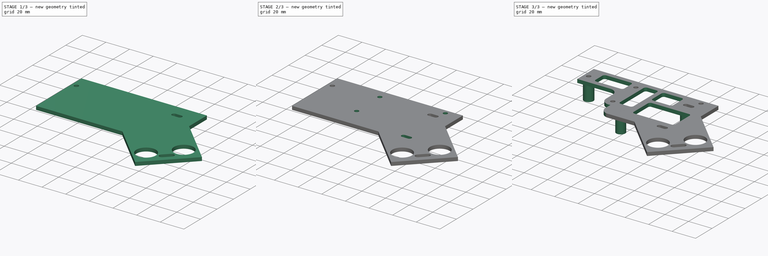
[diagram: build sequence overview — one tinted view per stage of 3, left to right]
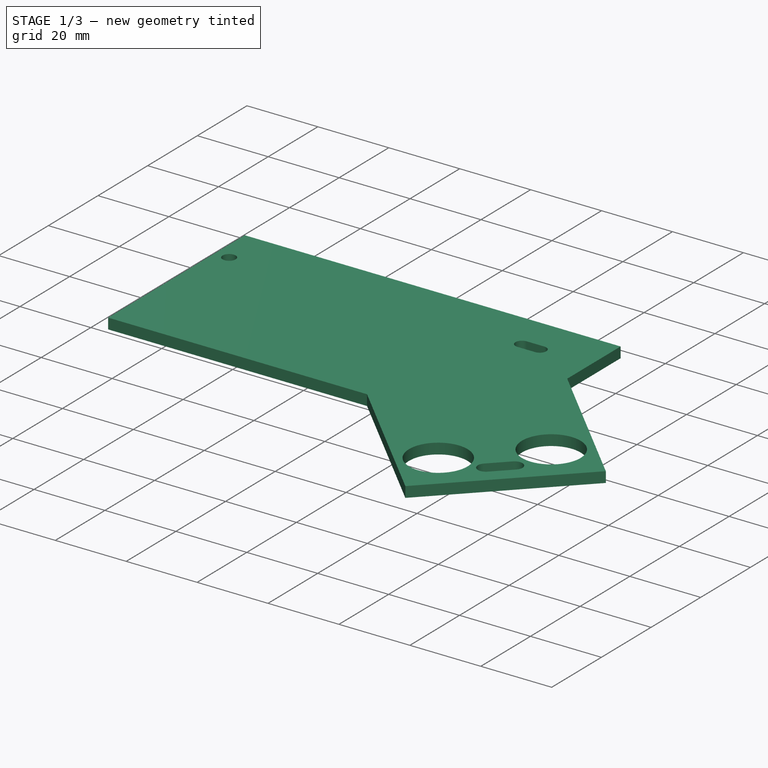
[diagram: stage 1 of 3 — iso view after this stage's code; geometry added in this stage tinted green]
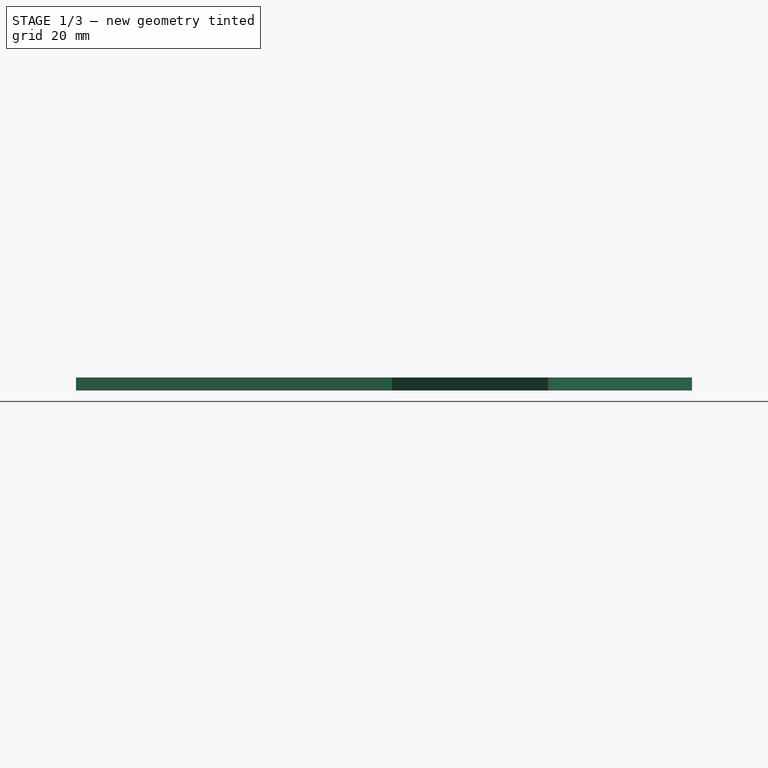
[diagram: stage 1 of 3 — front view after this stage's code; geometry added in this stage tinted green]
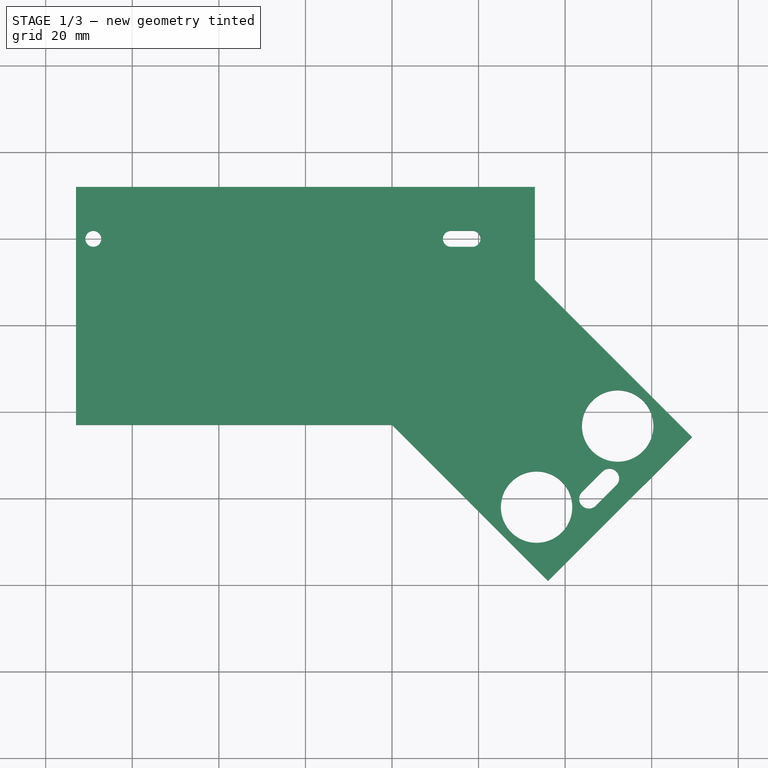
[diagram: stage 1 of 3 — top view after this stage's code; geometry added in this stage tinted green]
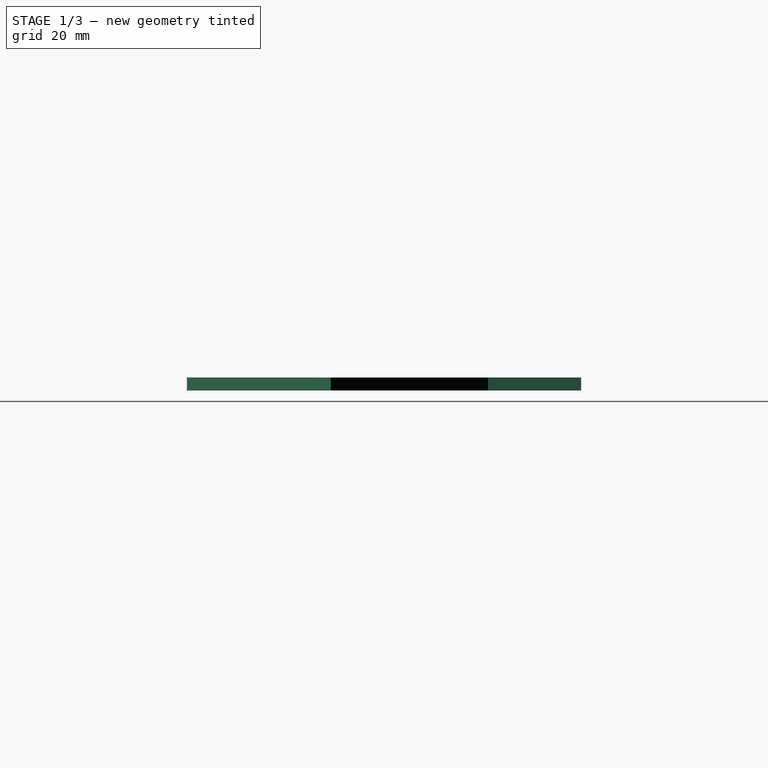
[diagram: stage 1 of 3 — right view after this stage's code; geometry added in this stage tinted green]
FCSTD DOCUMENT  (FreeCAD 0.14R3700 (Git))
Label: arduino platformv7
License: CC-BY 3.0
LicenseURL: http://creativecommons.org/licenses/by/3.0/
objects: Sketcher::SketchObject×5, PartDesign::Pocket×3, Drawing::FeatureViewPart×3, PartDesign::Pad×2, Drawing::FeaturePage×1
note: 15 computed .brp shape members not serialized (recipe doc carries the construction recipe); baked Part::Feature solids carry a one-line shape summary decoded from their .brp

FEATURE [Sketcher::SketchObject] Sketch
  sketch-geometry (13):
    g0: LineSegment StartX=-53 StartY=12 StartZ=0 EndX=53 EndY=12 EndZ=0
    g1: LineSegment StartX=-53 StartY=-43 StartZ=0 EndX=-53 EndY=12 EndZ=0
    g2: Circle CenterX=-49 CenterY=0 CenterZ=0 NormalX=0 NormalY=0 NormalZ=1 Radius=1.85
    g3: LineSegment StartX=53 StartY=-9.5 StartZ=0 EndX=89.3075 EndY=-45.8075 EndZ=0
    g4: LineSegment StartX=89.3075 StartY=-45.8075 StartZ=0 EndX=56.0575 EndY=-79.0575 EndZ=0
    g5: LineSegment StartX=56.0575 StartY=-79.0575 StartZ=0 EndX=20 EndY=-43 EndZ=0
    g6: LineSegment StartX=-53 StartY=-43 StartZ=0 EndX=20 EndY=-43 EndZ=0
    g7: LineSegment StartX=53 StartY=12 StartZ=0 EndX=53 EndY=-9.5 EndZ=0
    g8: GeomPoint [constr] X=21.1337 Y=29.9692 Z=0
    g9: ArcOfCircle CenterX=33.6 CenterY=0 CenterZ=0 NormalX=0 NormalY=0 NormalZ=1 Radius=1.85 StartAngle=1.5708 EndAngle=4.71239
    g10: ArcOfCircle CenterX=38.6 CenterY=0 CenterZ=0 NormalX=0 NormalY=0 NormalZ=1 Radius=1.85 StartAngle=4.71239 EndAngle=7.85398
    g11: LineSegment StartX=33.6 StartY=-1.85 StartZ=0 EndX=38.6 EndY=-1.85 EndZ=0
    g12: LineSegment StartX=33.6 StartY=1.85 StartZ=0 EndX=38.6 EndY=1.85 EndZ=0
  constraints (36):
    c: Coincident(g1,g0)
    c: Horizontal(g0)
    c: Vertical(g1)
    c: DistanceX(g0,g0) = 106
    c: DistanceX(g-1,g1) = -53
    c: DistanceY(g-1,g0) = 12
    c: Radius(g2) = 1.85
    c: DistanceY(g-1,g2) = 0
    c: Coincident(g3,g4)
    c: Coincident(g4,g5)
    c: Angle(g4,g5) = 1.5708
    c: DistanceY(g0,g1) = -55
    c: Coincident(g5,g6)
    c: Coincident(g1,g6)
    c: Coincident(g3,g7)
    c: Coincident(g0,g7)
    c: Angle(g3,g7) = 2.35619
    c: Vertical(g7)
    c: Horizontal(g6)
    c: DistanceY(g3,g0) = 21.5
    c: DistanceX(g1,g5) = 73
    c: Angle(g6,g5) = 2.35619
    c: Tangent(g9,g11)
    c: Tangent(g9,g12)
    c: Tangent(g10,g11)
    c: Tangent(g10,g12)
    c: Coincident(g9,g12)
    c: Coincident(g9,g11)
    c: Coincident(g11,g10)
    c: Coincident(g12,g10)
    c: Horizontal(g11)
    c: Equal(g9,g10)
    c: Radius(g10) = 1.85
    c: DistanceX(g9,g10) = 5
    c: DistanceX(g10,g2) = -87.6
    c: DistanceY(g9,g2) = 0
FEATURE [PartDesign::Pad] Pad
  Length = 3
  Length2 = 20
  Sketch = -> Sketch
  Type = 0
FEATURE [Sketcher::SketchObject] Sketch002
  Placement = pos=(0,0,3) rot=(0,0,1;0rad)
  Support = -> Pad [Face14]
  sketch-geometry (15):
    g0: Circle CenterX=53.4 CenterY=-62 CenterZ=0 NormalX=0 NormalY=0 NormalZ=1 Radius=8.25
    g1: Circle CenterX=72.1383 CenterY=-43.2617 CenterZ=0 NormalX=0 NormalY=0 NormalZ=1 Radius=8.25
    g2: ArcOfCircle CenterX=65.4915 CenterY=-60.0908 CenterZ=0 NormalX=0 NormalY=0 NormalZ=1 Radius=2.25 StartAngle=2.35619 EndAngle=5.49778
    g3: ArcOfCircle CenterX=70.2291 CenterY=-55.3532 CenterZ=0 NormalX=0 NormalY=0 NormalZ=1 Radius=2.25 StartAngle=5.49778 EndAngle=8.63937
    g4: LineSegment StartX=67.0825 StartY=-61.6818 StartZ=0 EndX=71.8201 EndY=-56.9442 EndZ=0
    g5: LineSegment StartX=63.9005 StartY=-58.4998 StartZ=0 EndX=68.6382 EndY=-53.7622 EndZ=0
    g6: LineSegment [constr] StartX=65.4915 StartY=-60.0908 StartZ=0 EndX=70.2291 EndY=-55.3532 EndZ=0
    g7: LineSegment [constr] StartX=65.4915 StartY=-60.0908 StartZ=0 EndX=90.4603 EndY=-60.0908 EndZ=0
    g8: LineSegment [constr] StartX=53.4 StartY=-62 StartZ=0 EndX=83.4 EndY=-62 EndZ=0
    g9: LineSegment [constr] StartX=83.4 StartY=-32 StartZ=0 EndX=53.4 EndY=-62 EndZ=0
    g10: Circle [constr] CenterX=72.1383 CenterY=-43.2617 CenterZ=0 NormalX=0 NormalY=0 NormalZ=1 Radius=7.2
    g11: LineSegment [constr] StartX=91.3469 StartY=-62.4703 StartZ=0 EndX=72.1383 EndY=-43.2617 EndZ=0
    g12: LineSegment [constr] StartX=72.1383 StartY=-43.2617 StartZ=0 EndX=105.378 EndY=-43.2617 EndZ=0
    g13: LineSegment [constr] StartX=53.4 StartY=-62 StartZ=0 EndX=75.1163 EndY=-83.7163 EndZ=0
    g14: Circle [constr] CenterX=53.4 CenterY=-62 CenterZ=0 NormalX=0 NormalY=0 NormalZ=1 Radius=9.65
  constraints (44):
    c: DistanceX(g0) = 53.4
    c: DistanceY(g0) = -62
    c: Radius(g0) = 8.25
    c: Radius(g1) = 8.25
    c: Tangent(g2,g4)
    c: Tangent(g2,g5)
    c: Tangent(g3,g4)
    c: Tangent(g3,g5)
    c: Coincident(g2,g5)
    c: Coincident(g2,g4)
    c: Coincident(g4,g3)
    c: Coincident(g5,g3)
    c: Equal(g2,g3)
    c: Distance(g2,g3) = 6.7
    c: Radius(g2) = 2.25
    c: Angle(g7,g6) = 0.785398
    c: Horizontal(g7)
    c: Coincident(g6,g7)
    c: Coincident(g2,g6)
    c: Coincident(g3,g6)
    c: Coincident(g8,g9)
    c: Horizontal(g8)
    c: Angle(g8,g9) = 0.785398
    c: DistanceY(g8,g9) = 30
    c: DistanceX(g8,g9) = 0
    c: Coincident(g0,g8)
    c: PointOnObject(g1,g9)
    c: Distance(g0,g1) = 26.5
    c: Radius(g10) = 7.2
    c: Coincident(g10,g1)
    c: Tangent(g6,g10)
    c: Coincident(g11,g12)
    c: Horizontal(g12)
    c: Angle(g11,g12) = 0.785398
    c: Coincident(g1,g11)
    c: Coincident(g0,g8)
    c: Coincident(g0,g9)
    c: Coincident(g0,g13)
    c: Angle(g13,g8) = 0.785398
    c: Radius(g14) = 9.65
    c: Coincident(g14,g0)
    c: Coincident(g14,g8)
    c: Coincident(g14,g9)
    c: Distance(g3,g11) = 9.9
FEATURE [PartDesign::Pocket] Pocket
  Length = 5
  Sketch = -> Sketch002
  Type = 0
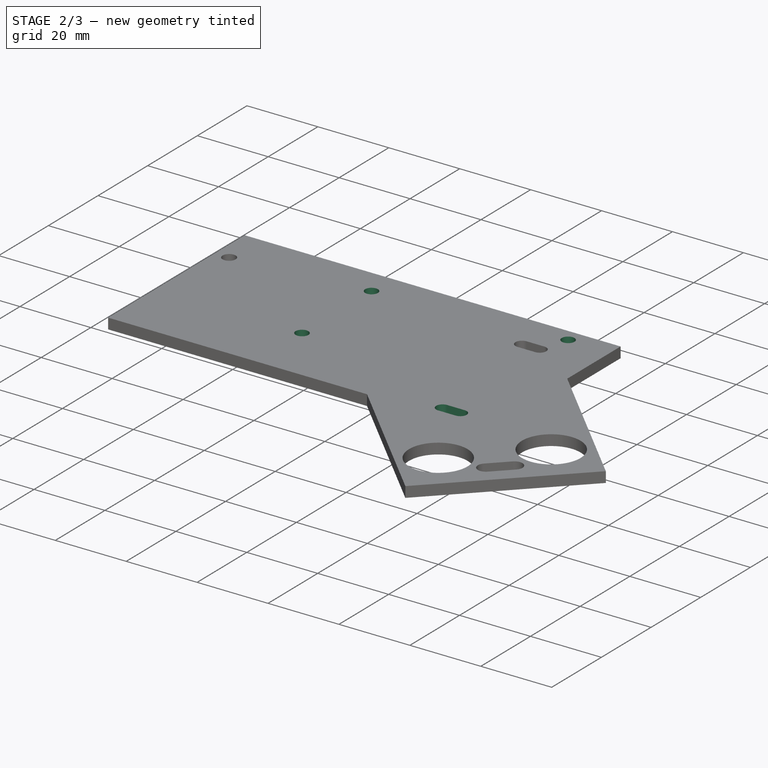
[diagram: stage 2 of 3 — iso view after this stage's code; geometry added in this stage tinted green]
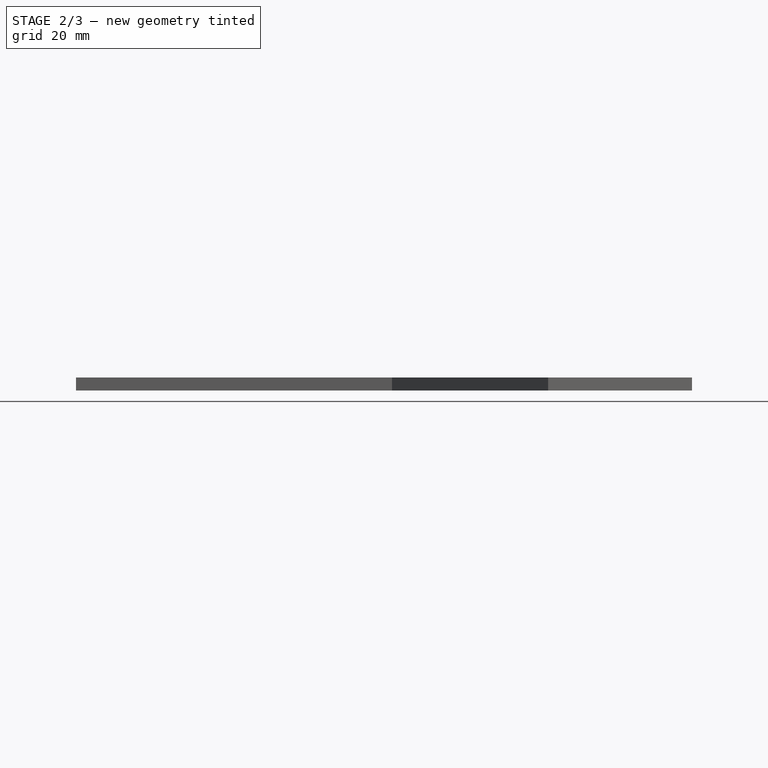
[diagram: stage 2 of 3 — front view after this stage's code; geometry added in this stage tinted green]
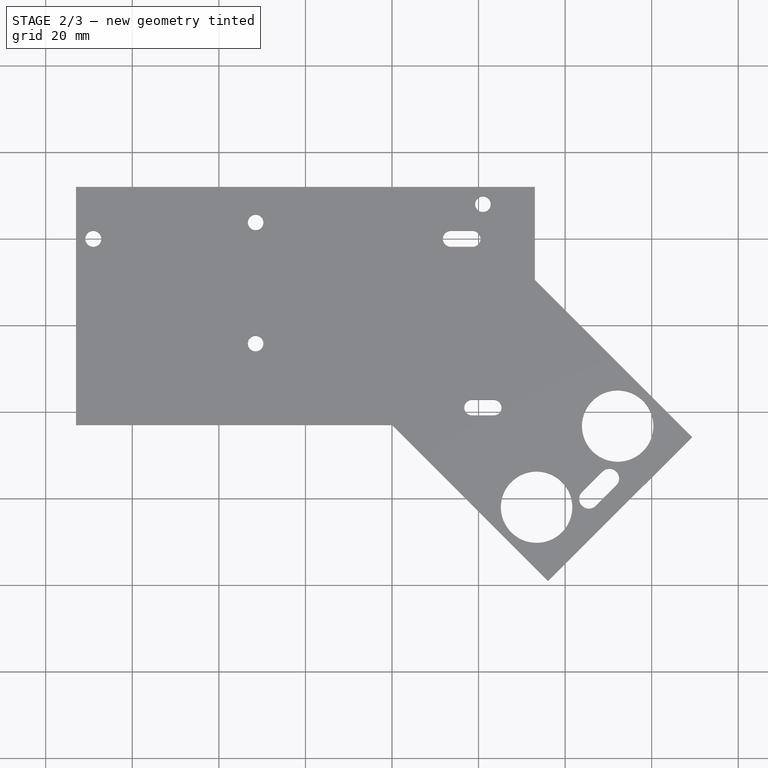
[diagram: stage 2 of 3 — top view after this stage's code; geometry added in this stage tinted green]
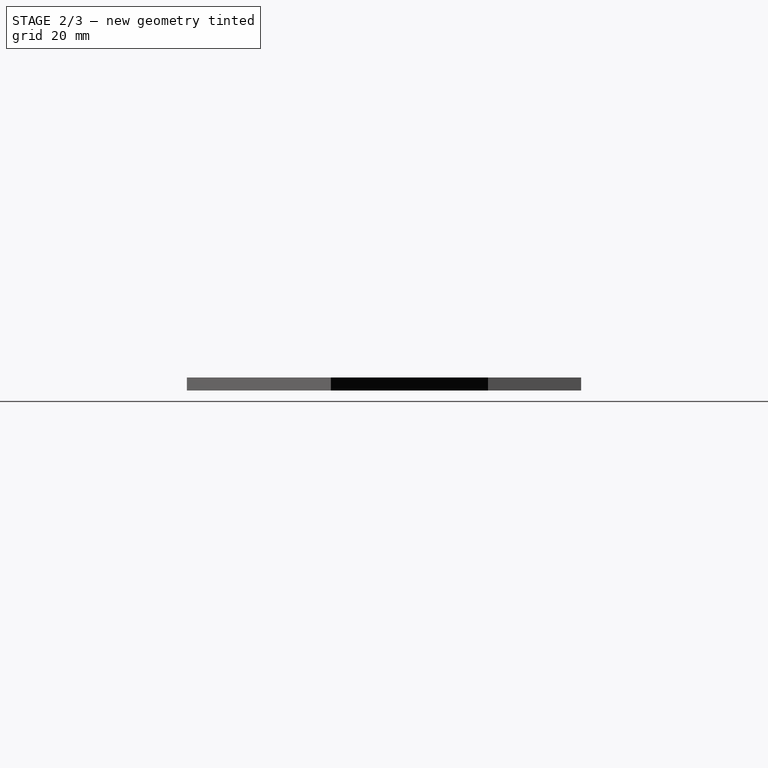
[diagram: stage 2 of 3 — right view after this stage's code; geometry added in this stage tinted green]
FEATURE [Sketcher::SketchObject] Sketch003
  Placement = pos=(0,0,3) rot=(0,0,1;0rad)
  Support = -> Pocket [Face5]
  sketch-geometry (7):
    g0: Circle CenterX=41 CenterY=8 CenterZ=0 NormalX=0 NormalY=0 NormalZ=1 Radius=1.8
    g1: ArcOfCircle CenterX=38.5 CenterY=-39 CenterZ=0 NormalX=0 NormalY=0 NormalZ=1 Radius=1.8 StartAngle=1.57079 EndAngle=4.71239
    g2: ArcOfCircle CenterX=43.5 CenterY=-39 CenterZ=0 NormalX=0 NormalY=0 NormalZ=1 Radius=1.8 StartAngle=4.71239 EndAngle=7.85397
    g3: LineSegment StartX=38.5 StartY=-40.8 StartZ=0 EndX=43.5 EndY=-40.8 EndZ=0
    g4: LineSegment StartX=38.5 StartY=-37.2 StartZ=0 EndX=43.5 EndY=-37.2 EndZ=0
    g5: Circle CenterX=-11.5 CenterY=3.8 CenterZ=0 NormalX=0 NormalY=0 NormalZ=1 Radius=1.8
    g6: Circle CenterX=-11.5 CenterY=-24.2 CenterZ=0 NormalX=0 NormalY=0 NormalZ=1 Radius=1.8
  constraints (23):
    c: Radius(g0) = 1.8
    c: DistanceX(g-1,g0) = 41
    c: Tangent(g1,g3)
    c: Tangent(g1,g4)
    c: Tangent(g2,g3)
    c: Tangent(g2,g4)
    c: Coincident(g1,g4)
    c: Coincident(g1,g3)
    c: Coincident(g3,g2)
    c: Coincident(g4,g2)
    c: Horizontal(g3)
    c: Equal(g1,g2)
    c: DistanceX(g1,g2) = 5
    c: DistanceX(g2,g0) = -2.5
    c: DistanceY(g0,g1) = -47
    c: DistanceY(g-1,g0) = 8
    c: Equal(g2,g0)
    c: Equal(g0,g5)
    c: Equal(g5,g6)
    c: DistanceY(g5,g6) = -28
    c: DistanceY(g6,g1) = -14.8
    c: DistanceX(g5,g6) = 0
    c: DistanceX(g5,g0) = 52.5
FEATURE [PartDesign::Pocket] Pocket001
  Length = 5
  Sketch = -> Sketch003
  Type = 0
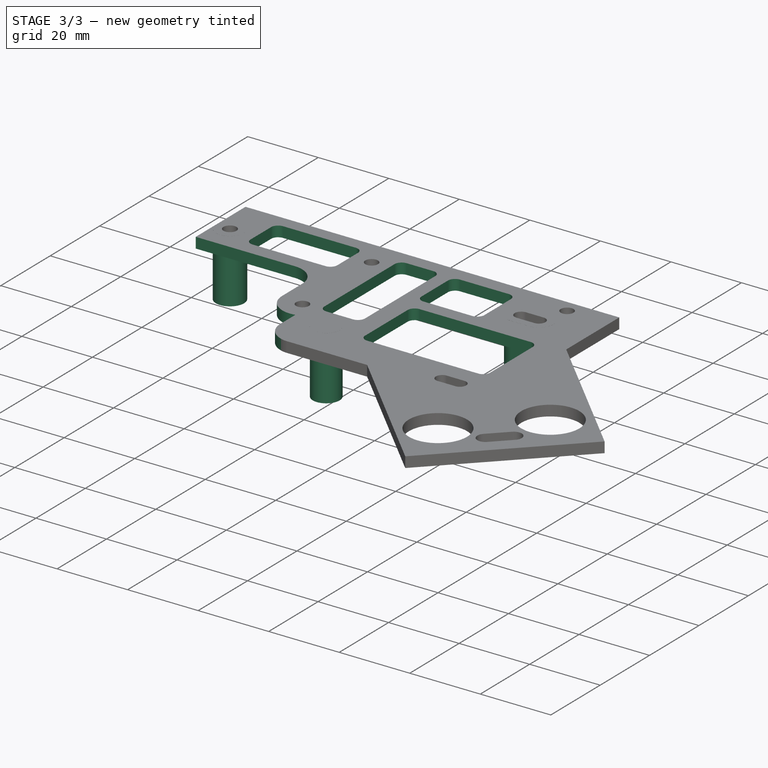
[diagram: stage 3 of 3 — iso view after this stage's code; geometry added in this stage tinted green]
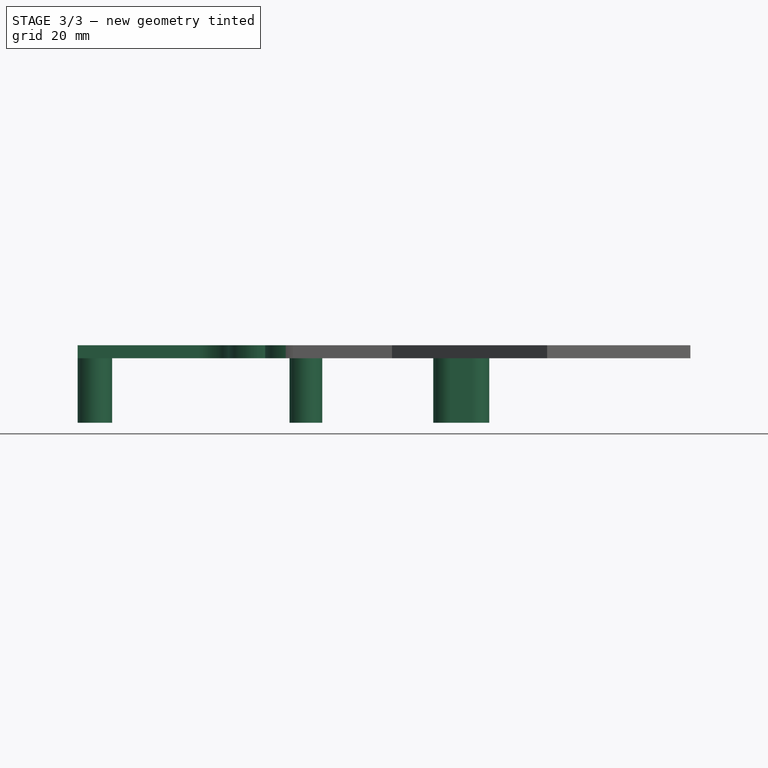
[diagram: stage 3 of 3 — front view after this stage's code; geometry added in this stage tinted green]
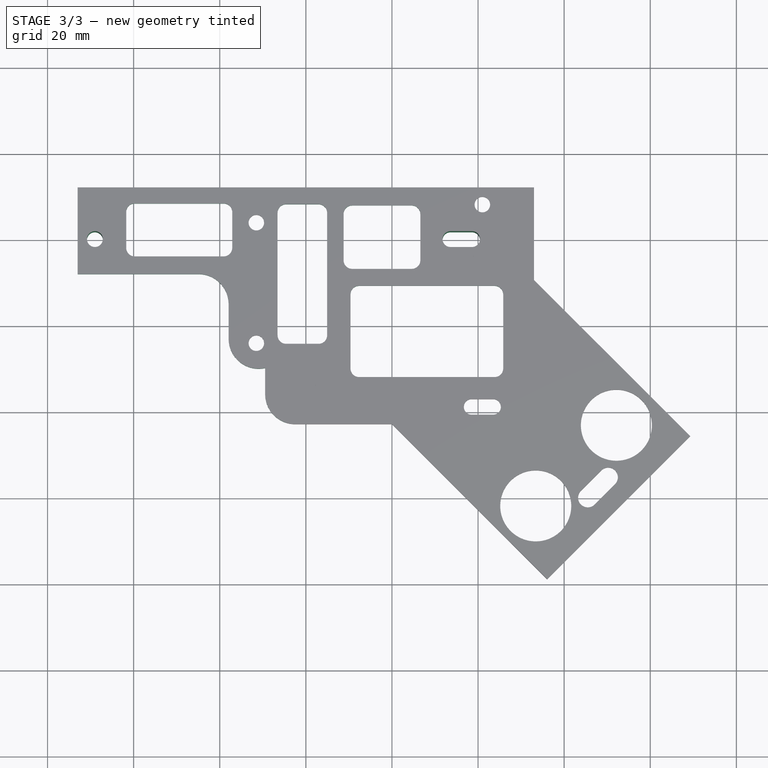
[diagram: stage 3 of 3 — top view after this stage's code; geometry added in this stage tinted green]
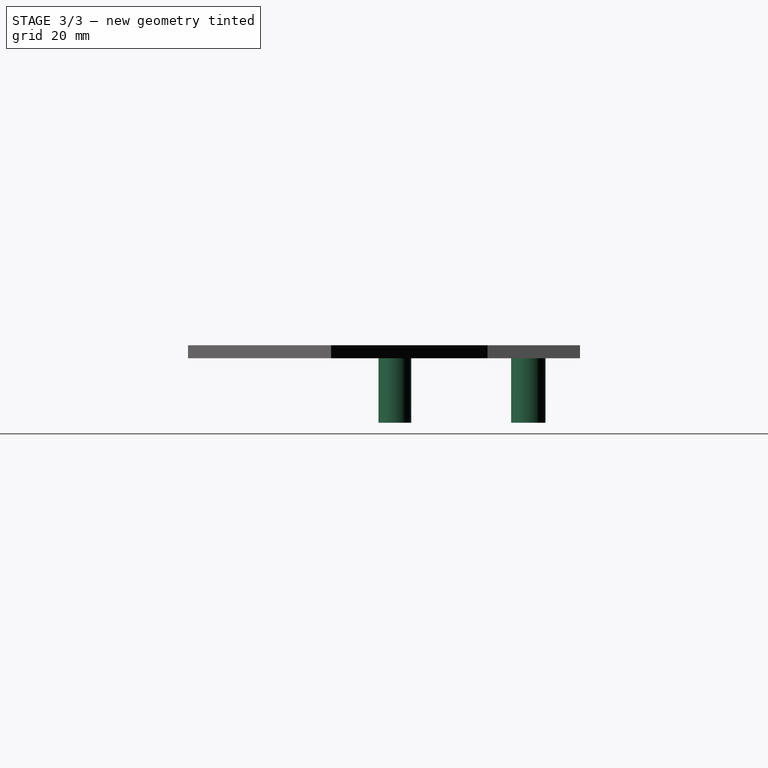
[diagram: stage 3 of 3 — right view after this stage's code; geometry added in this stage tinted green]
FEATURE [Sketcher::SketchObject] Sketch001
  Placement = pos=(0,0,0) rot=(1,0,0;3.14159rad)
  Support = -> Pocket001 [Face4]
  sketch-geometry (11):
    g0: Circle CenterX=0 CenterY=31 CenterZ=0 NormalX=0 NormalY=0 NormalZ=1 Radius=3.8
    g1: Circle CenterX=-49 CenterY=0 CenterZ=0 NormalX=0 NormalY=0 NormalZ=1 Radius=4
    g2: Circle CenterX=-49 CenterY=0 CenterZ=0 NormalX=0 NormalY=0 NormalZ=1 Radius=1.85
    g3: ArcOfCircle CenterX=33.6 CenterY=0 CenterZ=0 NormalX=0 NormalY=0 NormalZ=1 Radius=1.85 StartAngle=1.5708 EndAngle=4.71239
    g4: ArcOfCircle CenterX=38.6 CenterY=0 CenterZ=0 NormalX=0 NormalY=0 NormalZ=1 Radius=1.85 StartAngle=4.71238 EndAngle=7.85399
    g5: LineSegment StartX=33.6 StartY=-1.85 StartZ=0 EndX=38.6 EndY=-1.85 EndZ=0
    g6: LineSegment StartX=33.6 StartY=1.85 StartZ=0 EndX=38.6 EndY=1.85 EndZ=0
    g7: ArcOfCircle CenterX=33.6 CenterY=0 CenterZ=0 NormalX=0 NormalY=0 NormalZ=1 Radius=4 StartAngle=1.5708 EndAngle=4.71239
    g8: ArcOfCircle CenterX=38.6 CenterY=0 CenterZ=0 NormalX=0 NormalY=0 NormalZ=1 Radius=4 StartAngle=4.71239 EndAngle=7.85398
    g9: LineSegment StartX=33.6 StartY=-4 StartZ=0 EndX=38.6 EndY=-4 EndZ=0
    g10: LineSegment StartX=33.6 StartY=4 StartZ=0 EndX=38.6 EndY=4 EndZ=0
  constraints (35):
    c: Radius(g0) = 3.8
    c: DistanceY(g-1,g0) = 31
    c: DistanceX(g-1,g0) = 0
    c: Radius(g1) = 4
    c: Radius(g2) = 1.85
    c: Coincident(g2,g1)
    c: DistanceX(g1) = -49
    c: DistanceY(g1) = 0
    c: Tangent(g3,g5)
    c: Tangent(g3,g6)
    c: Tangent(g4,g5)
    c: Tangent(g4,g6)
    c: Coincident(g3,g6)
    c: Coincident(g3,g5)
    c: Coincident(g5,g4)
    c: Coincident(g6,g4)
    c: Horizontal(g5)
    c: Equal(g3,g4)
    c: DistanceX(g3,g4) = 5
    c: Radius(g3) = 1.85
    c: Tangent(g7,g9)
    c: Tangent(g7,g10)
    c: Tangent(g8,g9)
    c: Tangent(g8,g10)
    c: Coincident(g7,g10)
    c: Coincident(g7,g9)
    c: Coincident(g9,g8)
    c: Coincident(g10,g8)
    c: Horizontal(g9)
    c: Equal(g7,g8)
    c: Radius(g8) = 4
    c: DistanceX(g8,g7) = -5
    c: Coincident(g7,g3)
    c: DistanceX(g4,g1) = -87.6
    c: DistanceY(g3,g1) = 0
FEATURE [PartDesign::Pad] Pad001
  Length = 15
  Length2 = 3.01
  Reversed = true
  Sketch = -> Sketch001
  Type = 4
FEATURE [Sketcher::SketchObject] Sketch005
  Placement = pos=(0,0,0) rot=(1,0,0;3.14159rad)
  Support = -> Pad001 [Face4]
  sketch-geometry (48):
    g0: LineSegment StartX=-54.2533 StartY=49.236 StartZ=0 EndX=-17.9423 EndY=49.236 EndZ=0
    g1: LineSegment StartX=-17.9423 StartY=49.236 StartZ=0 EndX=-17.9423 EndY=43.6336 EndZ=0
    g2: LineSegment StartX=-24.9423 StartY=8.16141 StartZ=0 EndX=-59.799 EndY=8.16141 EndZ=0
    g3: LineSegment StartX=-65.6811 StartY=14.0435 StartZ=0 EndX=-65.6811 EndY=37.8081 EndZ=0
    g4: LineSegment StartX=12.3767 StartY=32.0619 StartZ=0 EndX=43.8448 EndY=32.0619 EndZ=0
    g5: LineSegment StartX=45.8448 StartY=30.0619 StartZ=0 EndX=45.8448 EndY=12.8763 EndZ=0
    g6: LineSegment StartX=43.8448 StartY=10.8763 StartZ=0 EndX=12.3767 EndY=10.8763 EndZ=0
    g7: LineSegment StartX=10.3767 StartY=12.8763 StartZ=0 EndX=10.3767 EndY=30.0619 EndZ=0
    g8: LineSegment StartX=-4.57069 StartY=24.3449 StartZ=0 EndX=2.94552 EndY=24.3449 EndZ=0
    g9: LineSegment StartX=4.94552 StartY=22.3449 StartZ=0 EndX=4.94552 EndY=-6.0694 EndZ=0
    g10: LineSegment StartX=2.94552 StartY=-8.0694 StartZ=0 EndX=-4.57069 EndY=-8.0694 EndZ=0
    g11: LineSegment StartX=-6.57069 StartY=-6.0694 StartZ=0 EndX=-6.57069 EndY=22.3449 EndZ=0
    g12: LineSegment StartX=10.764 StartY=6.92698 StartZ=0 EndX=24.5963 EndY=6.92698 EndZ=0
    g13: LineSegment StartX=26.5963 StartY=4.92698 StartZ=0 EndX=26.5963 EndY=-5.79577 EndZ=0
    g14: LineSegment StartX=24.5963 StartY=-7.79577 StartZ=0 EndX=10.764 EndY=-7.79577 EndZ=0
    g15: LineSegment StartX=8.76403 StartY=-5.79577 StartZ=0 EndX=8.76403 EndY=4.92698 EndZ=0
    g16: LineSegment StartX=-39.7311 StartY=4.03828 StartZ=0 EndX=-19.0952 EndY=4.03828 EndZ=0
    g17: LineSegment StartX=-17.0952 StartY=2.03828 StartZ=0 EndX=-17.0952 EndY=-6.25593 EndZ=0
    g18: LineSegment StartX=-19.0952 StartY=-8.25593 StartZ=0 EndX=-39.7311 EndY=-8.25593 EndZ=0
    g19: LineSegment StartX=-41.7311 StartY=-6.25593 StartZ=0 EndX=-41.7311 EndY=2.03828 EndZ=0
    g20: ArcOfCircle CenterX=-59.799 CenterY=14.0435 CenterZ=0 NormalX=0 NormalY=0 NormalZ=1 Radius=5.88213 StartAngle=3.14159 EndAngle=4.71239
    g21: ArcOfCircle CenterX=-54.2533 CenterY=37.8081 CenterZ=0 NormalX=0 NormalY=0 NormalZ=1 Radius=11.4279 StartAngle=1.5708 EndAngle=3.14159
    g22: ArcOfCircle CenterX=-24.9423 CenterY=15.1614 CenterZ=0 NormalX=0 NormalY=0 NormalZ=1 Radius=7 StartAngle=4.71239 EndAngle=6.28319
    g23: ArcOfCircle CenterX=-39.7311 CenterY=2.03828 CenterZ=0 NormalX=0 NormalY=0 NormalZ=1 Radius=2 StartAngle=1.5708 EndAngle=3.14159
    g24: ArcOfCircle CenterX=-39.7311 CenterY=-6.25593 CenterZ=0 NormalX=0 NormalY=0 NormalZ=1 Radius=2 StartAngle=3.14159 EndAngle=4.71239
    g25: ArcOfCircle CenterX=-19.0952 CenterY=-6.25593 CenterZ=0 NormalX=0 NormalY=0 NormalZ=1 Radius=2 StartAngle=4.71239 EndAngle=6.28319
    g26: ArcOfCircle CenterX=-19.0952 CenterY=2.03828 CenterZ=0 NormalX=0 NormalY=0 NormalZ=1 Radius=2 StartAngle=0 EndAngle=1.5708
    g27: ArcOfCircle CenterX=-4.57069 CenterY=-6.0694 CenterZ=0 NormalX=0 NormalY=0 NormalZ=1 Radius=2 StartAngle=3.14159 EndAngle=4.71239
    g28: ArcOfCircle CenterX=2.94552 CenterY=-6.0694 CenterZ=0 NormalX=0 NormalY=0 NormalZ=1 Radius=2 StartAngle=4.71239 EndAngle=6.28319
    g29: ArcOfCircle CenterX=-4.57069 CenterY=22.3449 CenterZ=0 NormalX=0 NormalY=0 NormalZ=1 Radius=2 StartAngle=1.5708 EndAngle=3.14159
    g30: ArcOfCircle CenterX=2.94552 CenterY=22.3449 CenterZ=0 NormalX=0 NormalY=0 NormalZ=1 Radius=2 StartAngle=0 EndAngle=1.5708
    g31: ArcOfCircle CenterX=12.3767 CenterY=12.8763 CenterZ=0 NormalX=0 NormalY=0 NormalZ=1 Radius=2 StartAngle=3.14159 EndAngle=4.71239
    g32: ArcOfCircle CenterX=12.3767 CenterY=30.0619 CenterZ=0 NormalX=0 NormalY=0 NormalZ=1 Radius=2 StartAngle=1.5708 EndAngle=3.14159
    g33: ArcOfCircle CenterX=43.8448 CenterY=30.0619 CenterZ=0 NormalX=0 NormalY=0 NormalZ=1 Radius=2 StartAngle=0 EndAngle=1.5708
    g34: ArcOfCircle CenterX=43.8448 CenterY=12.8763 CenterZ=0 NormalX=0 NormalY=0 NormalZ=1 Radius=2 StartAngle=4.71239 EndAngle=6.28319
    g35: ArcOfCircle CenterX=24.5963 CenterY=4.92698 CenterZ=0 NormalX=0 NormalY=0 NormalZ=1 Radius=2 StartAngle=0 EndAngle=1.5708
    g36: ArcOfCircle CenterX=10.764 CenterY=-5.79577 CenterZ=0 NormalX=0 NormalY=0 NormalZ=1 Radius=2 StartAngle=3.14159 EndAngle=4.71239
    g37: ArcOfCircle CenterX=10.764 CenterY=4.92698 CenterZ=0 NormalX=0 NormalY=0 NormalZ=1 Radius=2 StartAngle=1.5708 EndAngle=3.14159
    g38: ArcOfCircle CenterX=24.5963 CenterY=-5.79577 CenterZ=0 NormalX=0 NormalY=0 NormalZ=1 Radius=2 StartAngle=4.71239 EndAngle=6.28319
    g39: LineSegment StartX=-17.9423 StartY=43.6336 StartZ=0 EndX=-9.10105 EndY=43.6336 EndZ=0
    g40: LineSegment StartX=-9.45447 StartY=36.0193 StartZ=0 EndX=-9.45447 EndY=29.9863 EndZ=0
    g41: LineSegment StartX=-17.9423 StartY=23.1463 StartZ=0 EndX=-17.9423 EndY=15.1614 EndZ=0
    g42: LineSegment StartX=-9.10105 StartY=45.1398 StartZ=0 EndX=-1.15427 EndY=45.1398 EndZ=0
    g43: LineSegment StartX=-1.15427 StartY=45.1398 StartZ=0 EndX=-1.15427 EndY=43.0193 EndZ=0
    g44: LineSegment StartX=-1.15427 StartY=43.0193 StartZ=0 EndX=-2.45447 EndY=43.0193 EndZ=0
    g45: LineSegment StartX=-9.10105 StartY=43.6336 StartZ=0 EndX=-9.10105 EndY=45.1398 EndZ=0
    g46: ArcOfCircle CenterX=-2.45447 CenterY=36.0193 CenterZ=0 NormalX=0 NormalY=0 NormalZ=1 Radius=7 StartAngle=1.5708 EndAngle=3.14159
    g47: ArcOfCircle CenterX=-10.9423 CenterY=23.1463 CenterZ=0 NormalX=0 NormalY=0 NormalZ=1 Radius=7 StartAngle=1.35662 EndAngle=3.14159
  constraints (94):
    c: Coincident(g0,g1)
    c: Horizontal(g0)
    c: Horizontal(g2)
    c: Vertical(g1)
    c: Vertical(g3)
    c: Horizontal(g4)
    c: Horizontal(g6)
    c: Vertical(g5)
    c: Vertical(g7)
    c: Horizontal(g8)
    c: Horizontal(g10)
    c: Vertical(g9)
    c: Vertical(g11)
    c: Horizontal(g12)
    c: Horizontal(g14)
    c: Vertical(g13)
    c: Vertical(g15)
    c: Horizontal(g16)
    c: Horizontal(g18)
    c: Vertical(g17)
    c: Vertical(g19)
    c: Tangent(g3,g20)
    c: Tangent(g2,g20)
    c: Tangent(g0,g21)
    c: Tangent(g3,g21)
    c: Tangent(g2,g22)
    c: Tangent(g41,g22)
    c: Tangent(g19,g23)
    c: Tangent(g16,g23)
    c: Tangent(g18,g24)
    c: Tangent(g19,g24)
    c: Tangent(g18,g25)
    c: Tangent(g17,g25)
    c: Tangent(g16,g26)
    c: Tangent(g17,g26)
    c: Tangent(g11,g27)
    c: Tangent(g10,g27)
    c: Tangent(g9,g28)
    c: Tangent(g10,g28)
    c: Tangent(g11,g29)
    c: Tangent(g8,g29)
    c: Tangent(g9,g30)
    c: Tangent(g8,g30)
    c: Tangent(g6,g31)
    c: Tangent(g7,g31)
    c: Tangent(g4,g32)
    c: Tangent(g7,g32)
    c: Tangent(g4,g33)
    c: Tangent(g5,g33)
    c: Tangent(g6,g34)
    c: Tangent(g5,g34)
    c: Tangent(g12,g35)
    c: Tangent(g13,g35)
    c: Tangent(g15,g36)
    c: Tangent(g14,g36)
    c: Tangent(g15,g37)
    c: Tangent(g12,g37)
    c: Radius(g37) = 2
    c: Tangent(g14,g38)
    c: Tangent(g13,g38)
    c: Equal(g34,g37)
    c: Equal(g37,g35)
    c: Equal(g35,g38)
    c: Equal(g38,g36)
    c: Equal(g31,g32)
    c: Equal(g32,g33)
    c: Equal(g33,g34)
    c: Equal(g27,g28)
    c: Equal(g28,g29)
    c: Equal(g29,g30)
    c: Equal(g30,g37)
    c: Equal(g26,g25)
    c: Equal(g25,g24)
    c: Equal(g24,g23)
    c: Equal(g23,g37)
    c: Horizontal(g39)
    c: Vertical(g40)
    c: Coincident(g1,g39)
    c: Tangent(g1,g41)
    c: Coincident(g42,g43)
    c: Coincident(g43,g44)
    c: Coincident(g45,g42)
    c: Horizontal(g42)
    c: Horizontal(g44)
    c: Vertical(g43)
    c: Vertical(g45)
    c: Coincident(g39,g45)
    c: Tangent(g40,g46)
    c: Tangent(g44,g46)
    c: Tangent(g41,g47)
    c: Radius(g22) = 7
    c: Equal(g22,g47)
    c: Equal(g46,g22)
    c: Coincident(g40,g47)
FEATURE [PartDesign::Pocket] Pocket002
  Length = 5
  Sketch = -> Sketch005
  Type = 0
FEATURE [Drawing::FeatureViewPart] Ortho  label="Ortho_0_0"
  Direction = (1,0,0)
  HiddenWidth = 0.15
  LineWidth = 0.35
  Rotation = -90
  ShowHiddenLines = false
  ShowSmoothLines = false
  Source = -> Pocket002
  Tolerance = 0.05
  ViewResult = <blob: 2513 chars omitted>
  X = 342.455
  Y = 193.106
FEATURE [Drawing::FeatureViewPart] Ortho007  label="Ortho_-1_1"
  Direction = (0.57735,-0.57735,0.57735)
  HiddenWidth = 0.15
  LineWidth = 0.35
  Rotation = -120
  ShowHiddenLines = false
  ShowSmoothLines = false
  Source = -> Pocket002
  Tolerance = 0.05
  ViewResult = <blob: 11516 chars omitted>
  X = 147.571
  Y = 74.0537
FEATURE [Drawing::FeatureViewPart] Ortho008  label="Ortho_0_1"
  Direction = (0,0,1)
  HiddenWidth = 0.15
  LineWidth = 0.35
  Rotation = 90
  ShowHiddenLines = false
  ShowSmoothLines = false
  Source = -> Pocket002
  Tolerance = 0.05
  ViewResult = <blob: 4105 chars omitted>
  X = 342.455
  Y = 81.8942
FEATURE [Drawing::FeaturePage] Page
  EditableTexts = AUTHOR NAME | 3/3/2015 | SUPERVISOR NAME | CHECK DATE | SCALE | WEIGHT | NUMBER | SHEET | ARDUINO PLATFORM | V7
  Group = -> [Ortho,Ortho007,Ortho008]
  Template = C:/Program Files/FreeCAD 0.14/data/Mod/Drawing/Templates/A3_Landscape.svg
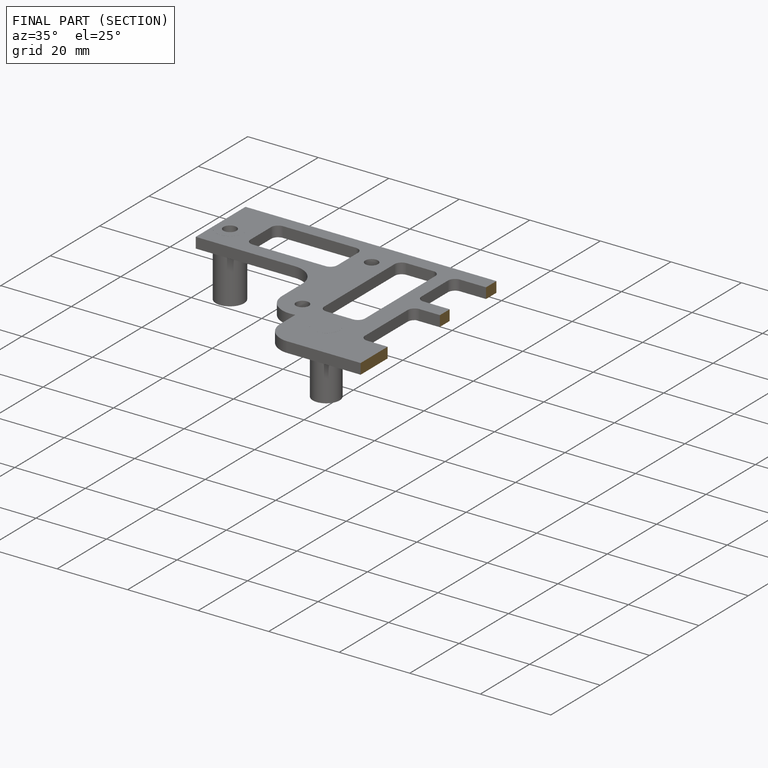
[diagram: finished part — half-section view (interior)]
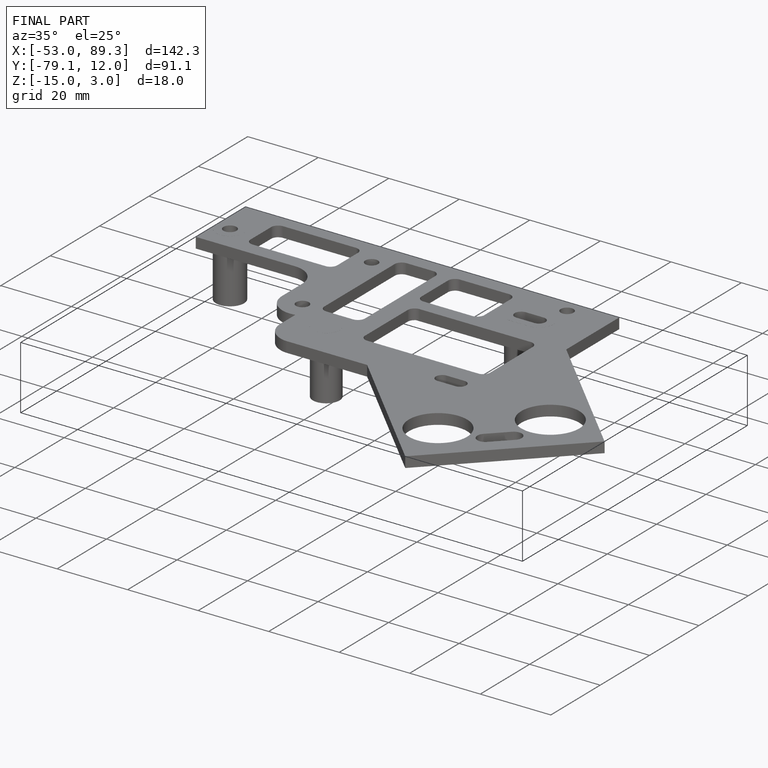
[diagram: finished part — iso view with bounding-box wireframe]
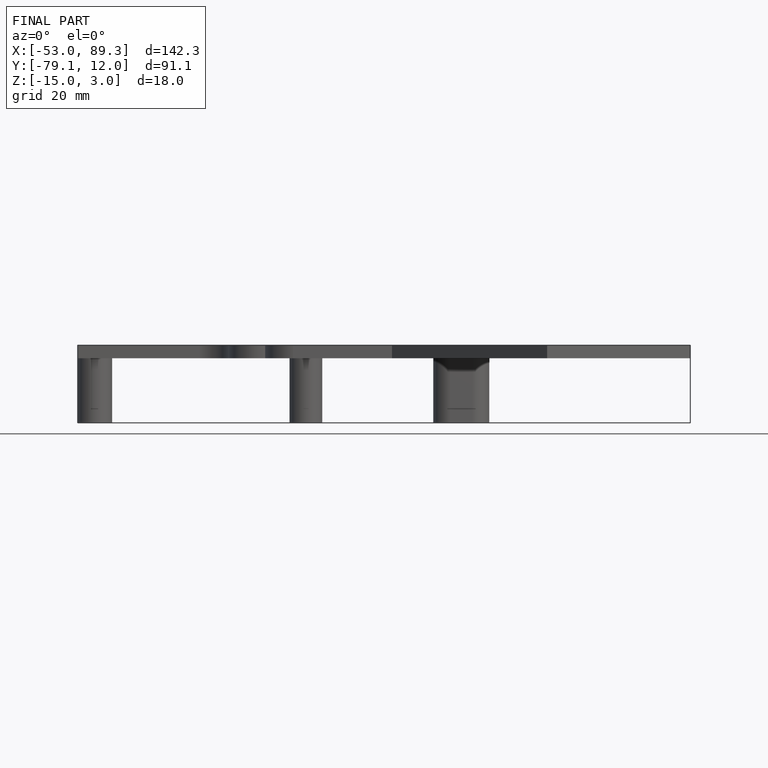
[diagram: finished part — front view with bounding-box wireframe]
